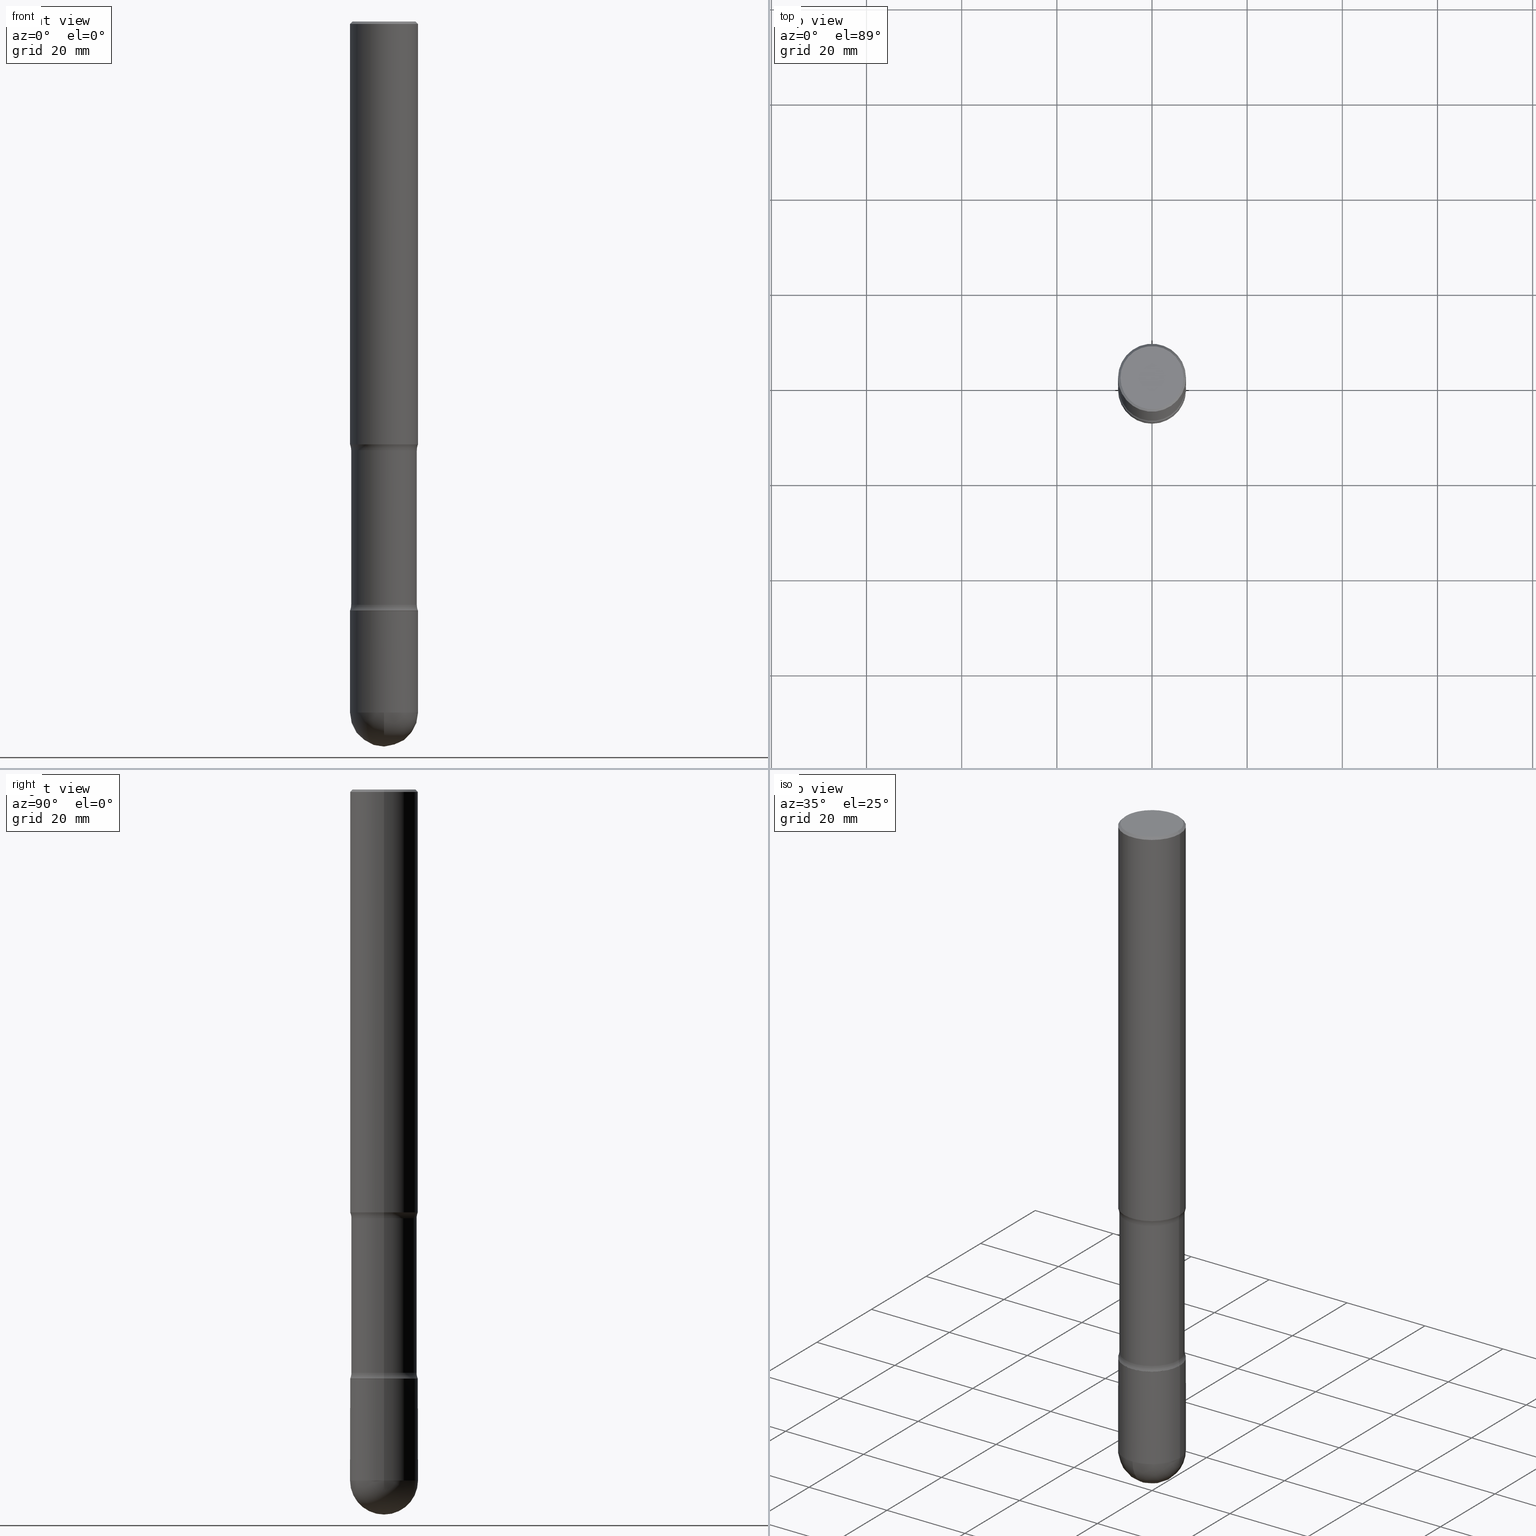
[diagram: canonical four-view strip — front | top / right | iso, engineering-drawing reading convention]
A machine part, canonical four-view strip (front | top / right | iso — engineering-drawing reading convention). The complete STEP part file that produces these views, byte-faithful:
ISO-10303-21;
HEADER;
FILE_DESCRIPTION (( 'STEP AP203' ),
    '1' );
FILE_NAME ('38496.STEP',
    '2024-02-29T19:25:12',
    ( '' ),
    ( '' ),
    'SwSTEP 2.0',
    'SolidWorks 2023',
    '' );
FILE_SCHEMA (( 'CONFIG_CONTROL_DESIGN' ));
ENDSEC;

DATA;
#1 = VERTEX_POINT ( 'NONE', #242 ) ;
#2 = CIRCLE ( 'NONE', #212, 0.2812500000000000555 ) ;
#3 = DIRECTION ( 'NONE',  ( 0.7071067811873008591, -2.468850131090147642E-15, 0.7071067811857941754 ) ) ;
#4 = AXIS2_PLACEMENT_3D ( 'NONE', #535, #7, #485 ) ;
#5 = EDGE_CURVE ( 'NONE', #310, #346, #274, .T. ) ;
#6 = EDGE_CURVE ( 'NONE', #467, #320, #553, .T. ) ;
#7 = DIRECTION ( 'NONE',  ( -2.438088387897960049E-29, 3.491481338843145188E-15, 1.000000000000000000 ) ) ;
#8 = ORIENTED_EDGE ( 'NONE', *, *, #363, .F. ) ;
#9 = PLANE ( 'NONE',  #4 ) ;
#10 = CIRCLE ( 'NONE', #470, 0.2811025723634238416 ) ;
#11 = SECURITY_CLASSIFICATION ( '', '', #315 ) ;
#12 = EDGE_LOOP ( 'NONE', ( #419, #264, #414, #437 ) ) ;
#13 = DIRECTION ( 'NONE',  ( -2.445468806185136597E-29, 3.491481338843145583E-15, 1.000000000000000000 ) ) ;
#14 = ADVANCED_FACE ( 'NONE', ( #508 ), #115, .T. ) ;
#15 = ORIENTED_EDGE ( 'NONE', *, *, #356, .T. ) ;
#16 = APPROVAL_ROLE ( '' ) ;
#17 = DIRECTION ( 'NONE',  ( 2.445468806185136597E-29, -3.491481338843145583E-15, -1.000000000000000000 ) ) ;
#18 = VERTEX_POINT ( 'NONE', #245 ) ;
#19 = APPROVAL_STATUS ( 'not_yet_approved' ) ;
#20 = CIRCLE ( 'NONE', #469, 0.1250000000000071332 ) ;
#21 = AXIS2_PLACEMENT_3D ( 'NONE', #215, #528, #93 ) ;
#22 = ORIENTED_EDGE ( 'NONE', *, *, #404, .F. ) ;
#23 = ADVANCED_BREP_SHAPE_REPRESENTATION ( '38496', ( #278, #473, #161 ), #89 ) ;
#24 = FACE_OUTER_BOUND ( 'NONE', #380, .T. ) ;
#25 = ORIENTED_EDGE ( 'NONE', *, *, #235, .T. ) ;
#26 = EDGE_CURVE ( 'NONE', #133, #18, #2, .T. ) ;
#27 = ORIENTED_EDGE ( 'NONE', *, *, #325, .F. ) ;
#28 = APPROVAL_DATE_TIME ( #367, #170 ) ;
#29 = CARTESIAN_POINT ( 'NONE',  ( 1.960466771760531918E-15, 0.2807499999999821250, -4.875000000000001776 ) ) ;
#30 = AXIS2_PLACEMENT_3D ( 'NONE', #44, #471, #81 ) ;
#31 = CIRCLE ( 'NONE', #483, 0.2812499999999996114 ) ;
#32 = CARTESIAN_POINT ( 'NONE',  ( 1.396097318348808052E-28, -2.000135209773525874E-14, -5.718750000000000000 ) ) ;
#33 = CC_DESIGN_DATE_AND_TIME_ASSIGNMENT ( #100, #68, ( #11 ) ) ;
#34 = CARTESIAN_POINT ( 'NONE',  ( 1.192166043015254315E-28, -1.702097152686033664E-14, -4.875000000000000888 ) ) ;
#35 = EDGE_LOOP ( 'NONE', ( #262, #314, #180, #361 ) ) ;
#36 = DIRECTION ( 'NONE',  ( 2.445468806185136597E-29, -3.491481338843145583E-15, -1.000000000000000000 ) ) ;
#37 = DIRECTION ( 'NONE',  ( 2.445468806185136597E-29, -3.491481338843145583E-15, -1.000000000000000000 ) ) ;
#38 = LINE ( 'NONE', #168, #40 ) ;
#39 = AXIS2_PLACEMENT_3D ( 'NONE', #326, #339, #519 ) ;
#40 = VECTOR ( 'NONE', #3, 39.37007874015748143 ) ;
#41 = LOCAL_TIME ( 14, 25, 12.00000000000000000, #554 ) ;
#42 = EDGE_CURVE ( 'NONE', #99, #533, #119, .T. ) ;
#43 = CARTESIAN_POINT ( 'NONE',  ( 0.2807499999999991114, -1.898205379853449620E-14, -4.875000000000000888 ) ) ;
#44 = CARTESIAN_POINT ( 'NONE',  ( -0.3964999999999875846, -9.620423262535530340E-15, -3.548398734487588246 ) ) ;
#45 = CARTESIAN_POINT ( 'NONE',  ( 0.2812499999999991118, -1.898492977995959205E-14, -4.875000000000000888 ) ) ;
#46 = ORIENTED_EDGE ( 'NONE', *, *, #325, .T. ) ;
#47 = CARTESIAN_POINT ( 'NONE',  ( 1.192166043015254315E-28, -1.702097152686033664E-14, -4.875000000000000888 ) ) ;
#48 = ORIENTED_EDGE ( 'NONE', *, *, #507, .T. ) ;
#49 = DIRECTION ( 'NONE',  ( 2.445468806185136597E-29, -3.491481338843145583E-15, -1.000000000000000000 ) ) ;
#50 = TOROIDAL_SURFACE ( 'NONE', #517, 0.3965000000000065694, 0.1250000000000071332 ) ;
#51 = DIRECTION ( 'NONE',  ( 1.000000000000000000, -6.982962677686261977E-15, 0.000000000000000000 ) ) ;
#52 = ORIENTED_EDGE ( 'NONE', *, *, #126, .F. ) ;
#53 = DIRECTION ( 'NONE',  ( -1.000000000000000000, 6.982962677686265922E-15, -4.883557194083112340E-29 ) ) ;
#54 = ADVANCED_FACE ( 'NONE', ( #64 ), #176, .F. ) ;
#55 = CIRCLE ( 'NONE', #136, 0.2714999999999994640 ) ;
#56 = CARTESIAN_POINT ( 'NONE',  ( 1.963958253099395041E-15, 0.2812499999999790168, -5.718750000000001776 ) ) ;
#57 = ORIENTED_EDGE ( 'NONE', *, *, #6, .T. ) ;
#58 = ORIENTED_EDGE ( 'NONE', *, *, #280, .T. ) ;
#59 = DATE_AND_TIME ( #540, #390 ) ;
#60 = CARTESIAN_POINT ( 'NONE',  ( 4.890937612370354609E-31, -6.982962677686407473E-17, -0.02000000000000033348 ) ) ;
#61 = DIRECTION ( 'NONE',  ( -1.000000000000000000, 6.982962677686265133E-15, 0.000000000000000000 ) ) ;
#62 = CIRCLE ( 'NONE', #248, 0.2812499999999990008 ) ;
#63 = APPROVAL_PERSON_ORGANIZATION ( #187, #354, #229 ) ;
#64 = FACE_OUTER_BOUND ( 'NONE', #139, .T. ) ;
#65 = CALENDAR_DATE ( 2024, 29, 2 ) ;
#66 = PLANE ( 'NONE',  #304 ) ;
#67 = DIRECTION ( 'NONE',  ( 2.445468806185136877E-29, -3.491481338843145188E-15, -1.000000000000000000 ) ) ;
#68 = DATE_TIME_ROLE ( 'classification_date' ) ;
#69 = ADVANCED_FACE ( 'NONE', ( #379 ), #237, .T. ) ;
#70 = DIRECTION ( 'NONE',  ( -1.000000000000000000, 6.982962677686268288E-15, 0.000000000000000000 ) ) ;
#71 = CARTESIAN_POINT ( 'NONE',  ( 1.192166043015254315E-28, -1.702097152686033664E-14, -4.875000000000000888 ) ) ;
#72 = DIRECTION ( 'NONE',  ( 0.7071067811865426878, -7.319954787623238690E-15, -0.7071067811865523467 ) ) ;
#73 = CIRCLE ( 'NONE', #335, 0.2812499999999991118 ) ;
#74 = FACE_OUTER_BOUND ( 'NONE', #166, .T. ) ;
#75 = DIRECTION ( 'NONE',  ( 1.000000000000000000, -6.982962677686267499E-15, 4.876176775795935232E-29 ) ) ;
#76 = ORIENTED_EDGE ( 'NONE', *, *, #111, .F. ) ;
#77 = CARTESIAN_POINT ( 'NONE',  ( -0.2812499999999991673, -1.649553877235951378E-14, -4.875000000000000888 ) ) ;
#78 = CIRCLE ( 'NONE', #502, 0.2612499999999995937 ) ;
#79 = VECTOR ( 'NONE', #131, 39.37007874015748143 ) ;
#80 = CARTESIAN_POINT ( 'NONE',  ( 1.180330283470431069E-28, -1.685198824857329994E-14, -4.826601265512413086 ) ) ;
#81 = DIRECTION ( 'NONE',  ( 1.000000000000000000, -6.982962677686264344E-15, 0.000000000000000000 ) ) ;
#82 = CARTESIAN_POINT ( 'NONE',  ( 0.2812499999999989453, -2.045789846978405097E-14, -5.718750000000000000 ) ) ;
#83 = DIRECTION ( 'NONE',  ( 2.445468806185136597E-29, -3.491481338843145583E-15, -1.000000000000000000 ) ) ;
#84 = CARTESIAN_POINT ( 'NONE',  ( 1.192079822543586772E-28, -1.701974052703285180E-14, -4.874647427636577213 ) ) ;
#85 = DIRECTION ( 'NONE',  ( 6.860497997771531562E-15, 1.000000000000000000, -3.491481338843145583E-15 ) ) ;
#86 = ORIENTED_EDGE ( 'NONE', *, *, #330, .T. ) ;
#87 = AXIS2_PLACEMENT_3D ( 'NONE', #47, #211, #174 ) ;
#88 = DIRECTION ( 'NONE',  ( -1.000000000000000000, 6.982962677686266711E-15, -4.883557194083112901E-29 ) ) ;
#89 =( GEOMETRIC_REPRESENTATION_CONTEXT ( 3 ) GLOBAL_UNCERTAINTY_ASSIGNED_CONTEXT ( ( #393 ) ) GLOBAL_UNIT_ASSIGNED_CONTEXT ( ( #227, #254, #220 ) ) REPRESENTATION_CONTEXT ( 'NONE', 'WORKASPACE' ) );
#90 = LOCAL_TIME ( 14, 25, 12.00000000000000000, #183 ) ;
#91 = FACE_OUTER_BOUND ( 'NONE', #35, .T. ) ;
#92 = ORIENTED_EDGE ( 'NONE', *, *, #530, .F. ) ;
#93 = DIRECTION ( 'NONE',  ( -1.000000000000000000, 6.982962677686265133E-15, 0.000000000000000000 ) ) ;
#94 = ORIENTED_EDGE ( 'NONE', *, *, #137, .T. ) ;
#95 = CARTESIAN_POINT ( 'NONE',  ( 1.192166043015254315E-28, -1.702097152686033664E-14, -4.875000000000000888 ) ) ;
#96 = AXIS2_PLACEMENT_3D ( 'NONE', #505, #112, #286 ) ;
#97 = ORIENTED_EDGE ( 'NONE', *, *, #128, .F. ) ;
#98 = APPLICATION_PROTOCOL_DEFINITION ( 'international standard', 'config_control_design', 1994, #209 ) ;
#99 = VERTEX_POINT ( 'NONE', #284 ) ;
#100 = DATE_AND_TIME ( #65, #144 ) ;
#101 = DIRECTION ( 'NONE',  ( -1.000000000000000000, 6.860497997771536296E-15, 0.000000000000000000 ) ) ;
#102 = ORIENTED_EDGE ( 'NONE', *, *, #559, .F. ) ;
#103 = COORDINATED_UNIVERSAL_TIME_OFFSET ( 5, 0, .BEHIND. ) ;
#104 = CARTESIAN_POINT ( 'NONE',  ( 1.192166043015254315E-28, -1.702097152686033664E-14, -4.875000000000000888 ) ) ;
#105 = VECTOR ( 'NONE', #163, 39.37007874015748143 ) ;
#106 = EDGE_LOOP ( 'NONE', ( #46, #489, #92, #252 ) ) ;
#107 = PERSON_AND_ORGANIZATION ( #344, #305 ) ;
#108 = DIRECTION ( 'NONE',  ( -1.000000000000000000, 6.982962677686265922E-15, 0.000000000000000000 ) ) ;
#109 = ORIENTED_EDGE ( 'NONE', *, *, #383, .T. ) ;
#110 = SHAPE_DEFINITION_REPRESENTATION ( #448, #23 ) ;
#111 = EDGE_CURVE ( 'NONE', #167, #18, #461, .T. ) ;
#112 = DIRECTION ( 'NONE',  ( 2.445468806185136597E-29, -3.491481338843145583E-15, -1.000000000000000000 ) ) ;
#113 = CARTESIAN_POINT ( 'NONE',  ( 1.192166043015254315E-28, -1.702097152686033664E-14, -4.875000000000000888 ) ) ;
#114 = DIRECTION ( 'NONE',  ( 1.000000000000000000, -6.982962677686268288E-15, 0.000000000000000000 ) ) ;
#115 = CYLINDRICAL_SURFACE ( 'NONE', #531, 0.2812499999999990008 ) ;
#116 = CARTESIAN_POINT ( 'NONE',  ( 1.398502473537124991E-28, -1.996690890650924185E-14, -5.718750000000000000 ) ) ;
#117 = VECTOR ( 'NONE', #468, 39.37007874015748143 ) ;
#118 = ORIENTED_EDGE ( 'NONE', *, *, #288, .F. ) ;
#119 = CIRCLE ( 'NONE', #431, 0.2714999999999994640 ) ;
#120 = CIRCLE ( 'NONE', #290, 0.2714999999999992975 ) ;
#121 = DIRECTION ( 'NONE',  ( -2.445468806185136597E-29, 3.491481338843145583E-15, 1.000000000000000000 ) ) ;
#122 = DIRECTION ( 'NONE',  ( -1.000000000000000000, 6.982962677686268288E-15, 0.000000000000000000 ) ) ;
#123 = CARTESIAN_POINT ( 'NONE',  ( 0.3965000000000065694, -1.957217570468975761E-14, -4.826601265512413086 ) ) ;
#124 = ORIENTED_EDGE ( 'NONE', *, *, #356, .F. ) ;
#125 = DIRECTION ( 'NONE',  ( 2.445468806185136597E-29, -3.491481338843145583E-15, -1.000000000000000000 ) ) ;
#126 = EDGE_CURVE ( 'NONE', #542, #167, #464, .T. ) ;
#127 = EDGE_LOOP ( 'NONE', ( #8, #441, #555, #348, #498 ) ) ;
#128 = EDGE_CURVE ( 'NONE', #18, #133, #541, .T. ) ;
#129 = EDGE_CURVE ( 'NONE', #542, #226, #78, .T. ) ;
#130 = CC_DESIGN_DATE_AND_TIME_ASSIGNMENT ( #59, #447, ( #457 ) ) ;
#131 = DIRECTION ( 'NONE',  ( 2.445468806185136877E-29, -3.491481338843145188E-15, -1.000000000000000000 ) ) ;
#132 = DIRECTION ( 'NONE',  ( -1.000000000000000000, 7.105427357601001070E-15, -4.926315508542082329E-29 ) ) ;
#133 = VERTEX_POINT ( 'NONE', #169 ) ;
#134 = ORIENTED_EDGE ( 'NONE', *, *, #330, .F. ) ;
#135 = DIRECTION ( 'NONE',  ( -1.000000000000000000, 6.982962677686268288E-15, 0.000000000000000000 ) ) ;
#136 = AXIS2_PLACEMENT_3D ( 'NONE', #343, #521, #336 ) ;
#137 = EDGE_CURVE ( 'NONE', #1, #133, #295, .T. ) ;
#138 = ORIENTED_EDGE ( 'NONE', *, *, #162, .F. ) ;
#139 = EDGE_LOOP ( 'NONE', ( #118, #308, #94, #480 ) ) ;
#140 = FACE_OUTER_BOUND ( 'NONE', #359, .T. ) ;
#141 = ORIENTED_EDGE ( 'NONE', *, *, #218, .F. ) ;
#142 = ORIENTED_EDGE ( 'NONE', *, *, #363, .T. ) ;
#143 = TOROIDAL_SURFACE ( 'NONE', #424, 0.3964999999999875846, 0.1249999999999883010 ) ;
#144 = LOCAL_TIME ( 14, 25, 12.00000000000000000, #456 ) ;
#145 = VERTEX_POINT ( 'NONE', #207 ) ;
#146 = CALENDAR_DATE ( 2024, 29, 2 ) ;
#147 = APPROVAL_ROLE ( '' ) ;
#148 = DIRECTION ( 'NONE',  ( 2.445468806185136597E-29, -3.491481338843145583E-15, -1.000000000000000000 ) ) ;
#149 = ORIENTED_EDGE ( 'NONE', *, *, #536, .F. ) ;
#150 = CARTESIAN_POINT ( 'NONE',  ( 0.000000000000000000, 0.000000000000000000, 0.000000000000000000 ) ) ;
#151 = CIRCLE ( 'NONE', #381, 0.1249999999999882871 ) ;
#152 = CONICAL_SURFACE ( 'NONE', #177, 0.2807499999999991114, 0.7853981633985136490 ) ;
#153 = DIRECTION ( 'NONE',  ( 2.445468806185136597E-29, -3.491481338843145583E-15, -1.000000000000000000 ) ) ;
#154 = CARTESIAN_POINT ( 'NONE',  ( 1.398502473537124991E-28, -1.996690890650924185E-14, -5.718750000000000000 ) ) ;
#155 = DIRECTION ( 'NONE',  ( -1.000000000000000000, 6.982962677686265133E-15, 0.000000000000000000 ) ) ;
#156 = APPLICATION_CONTEXT ( 'configuration controlled 3d designs of mechanical parts and assemblies' ) ;
#157 = DIRECTION ( 'NONE',  ( 2.438088387897960049E-29, -3.491481338843145188E-15, -1.000000000000000000 ) ) ;
#158 = VERTEX_POINT ( 'NONE', #45 ) ;
#159 = FACE_OUTER_BOUND ( 'NONE', #495, .T. ) ;
#160 = EDGE_LOOP ( 'NONE', ( #138, #124, #269, #272 ) ) ;
#161 = AXIS2_PLACEMENT_3D ( 'NONE', #285, #362, #409 ) ;
#162 = EDGE_CURVE ( 'NONE', #467, #99, #20, .T. ) ;
#163 = DIRECTION ( 'NONE',  ( -2.445468806185136877E-29, 3.491481338843145188E-15, 1.000000000000000000 ) ) ;
#164 = DIRECTION ( 'NONE',  ( -1.000000000000000000, 6.860497997771542606E-15, 0.000000000000000000 ) ) ;
#165 = CARTESIAN_POINT ( 'NONE',  ( 0.2714999999999993530, -1.888359673325530554E-14, -4.875000000000000888 ) ) ;
#166 = EDGE_LOOP ( 'NONE', ( #357, #403, #109, #268 ) ) ;
#167 = VERTEX_POINT ( 'NONE', #432 ) ;
#168 = CARTESIAN_POINT ( 'NONE',  ( 0.2807499999999991114, -1.898143829862075378E-14, -4.875000000000000888 ) ) ;
#169 = CARTESIAN_POINT ( 'NONE',  ( -0.2812500000000000555, -1.025622643285174920E-14, -3.500000000000000888 ) ) ;
#170 = APPROVAL ( #451, 'UNSPECIFIED' ) ;
#171 = AXIS2_PLACEMENT_3D ( 'NONE', #154, #514, #500 ) ;
#172 = LINE ( 'NONE', #165, #372 ) ;
#173 = LINE ( 'NONE', #292, #117 ) ;
#174 = DIRECTION ( 'NONE',  ( -1.000000000000000000, 6.982962677686265133E-15, 0.000000000000000000 ) ) ;
#175 = PLANE ( 'NONE',  #351 ) ;
#176 = TOROIDAL_SURFACE ( 'NONE', #39, 0.3964999999999875846, 0.1249999999999883010 ) ;
#177 = AXIS2_PLACEMENT_3D ( 'NONE', #557, #232, #497 ) ;
#178 = CC_DESIGN_APPROVAL ( #547, ( #11 ) ) ;
#179 = EDGE_LOOP ( 'NONE', ( #487, #58, #134, #270 ) ) ;
#180 = ORIENTED_EDGE ( 'NONE', *, *, #128, .T. ) ;
#181 = DIRECTION ( 'NONE',  ( 1.000000000000000000, -6.982962677686272233E-15, 0.000000000000000000 ) ) ;
#182 = ORIENTED_EDGE ( 'NONE', *, *, #523, .T. ) ;
#183 = COORDINATED_UNIVERSAL_TIME_OFFSET ( 5, 0, .BEHIND. ) ;
#184 = AXIS2_PLACEMENT_3D ( 'NONE', #443, #132, #224 ) ;
#185 = CONICAL_SURFACE ( 'NONE', #337, 0.2812499999999996114, 0.7853981633974415066 ) ;
#186 = EDGE_LOOP ( 'NONE', ( #76, #549, #255, #97 ) ) ;
#187 = PERSON_AND_ORGANIZATION ( #344, #305 ) ;
#188 = CARTESIAN_POINT ( 'NONE',  ( 0.3964999999999875846, -1.510935542035437277E-14, -3.548398734487588246 ) ) ;
#189 = DIRECTION ( 'NONE',  ( -1.000000000000000000, 6.982962677686269077E-15, 0.000000000000000000 ) ) ;
#190 = PERSON_AND_ORGANIZATION ( #344, #305 ) ;
#191 = DIRECTION ( 'NONE',  ( 2.445468806185136597E-29, -3.491481338843145583E-15, -1.000000000000000000 ) ) ;
#192 = PRODUCT ( '38496', '38496', '', ( #194 ) ) ;
#193 = DIRECTION ( 'NONE',  ( 2.445468806185136597E-29, -3.491481338843145583E-15, -1.000000000000000000 ) ) ;
#194 = MECHANICAL_CONTEXT ( 'NONE', #156, 'mechanical' ) ;
#195 = FACE_OUTER_BOUND ( 'NONE', #501, .T. ) ;
#196 = AXIS2_PLACEMENT_3D ( 'NONE', #34, #193, #155 ) ;
#197 = CONICAL_SURFACE ( 'NONE', #389, 0.2812499999999996114, 0.7853981633974415066 ) ;
#198 = CARTESIAN_POINT ( 'NONE',  ( 1.192079822543586772E-28, -1.701974052703285180E-14, -4.874647427636577213 ) ) ;
#199 = DIRECTION ( 'NONE',  ( 1.000000000000000000, -6.982962677686265922E-15, 4.883557194083112340E-29 ) ) ;
#200 = DIRECTION ( 'NONE',  ( -1.000000000000000000, 6.982962677686268288E-15, 0.000000000000000000 ) ) ;
#201 = EDGE_CURVE ( 'NONE', #158, #221, #73, .T. ) ;
#202 = DIRECTION ( 'NONE',  ( 2.445468806185136877E-29, -3.491481338843145188E-15, -1.000000000000000000 ) ) ;
#203 = DIRECTION ( 'NONE',  ( -1.000000000000000000, 6.982962677686265133E-15, -4.876176775795934672E-29 ) ) ;
#204 = AXIS2_PLACEMENT_3D ( 'NONE', #365, #148, #319 ) ;
#205 = DIRECTION ( 'NONE',  ( 2.445468806185136597E-29, -3.491481338843145583E-15, -1.000000000000000000 ) ) ;
#206 = CARTESIAN_POINT ( 'NONE',  ( -0.2812499999999990008, 1.998401444325274673E-15, -1.383450494134187504E-29 ) ) ;
#207 = CARTESIAN_POINT ( 'NONE',  ( -0.2812499999999989453, -1.649553877235951694E-14, -5.718750000000000000 ) ) ;
#208 = CARTESIAN_POINT ( 'NONE',  ( -0.2714999999999993530, -1.512509715986852223E-14, -4.875000000000000888 ) ) ;
#209 = APPLICATION_CONTEXT ( 'configuration controlled 3d designs of mechanical parts and assemblies' ) ;
#210 = ADVANCED_FACE ( 'NONE', ( #428 ), #341, .T. ) ;
#211 = DIRECTION ( 'NONE',  ( 2.445468806185136597E-29, -3.491481338843145583E-15, -1.000000000000000000 ) ) ;
#212 = AXIS2_PLACEMENT_3D ( 'NONE', #408, #552, #200 ) ;
#213 = CIRCLE ( 'NONE', #184, 0.2812499999999990008 ) ;
#214 = DIRECTION ( 'NONE',  ( -1.000000000000000000, 6.982962677686265922E-15, 0.000000000000000000 ) ) ;
#215 = CARTESIAN_POINT ( 'NONE',  ( 1.192166043015254315E-28, -1.702097152686033664E-14, -4.875000000000000888 ) ) ;
#216 = ORIENTED_EDGE ( 'NONE', *, *, #5, .F. ) ;
#217 = ORIENTED_EDGE ( 'NONE', *, *, #201, .F. ) ;
#218 = EDGE_CURVE ( 'NONE', #299, #133, #173, .T. ) ;
#219 = CARTESIAN_POINT ( 'NONE',  ( 8.677498417096211671E-29, -1.238916796423804762E-14, -3.548398734487588246 ) ) ;
#220 =( NAMED_UNIT ( * ) SI_UNIT ( $, .STERADIAN. ) SOLID_ANGLE_UNIT ( ) );
#221 = VERTEX_POINT ( 'NONE', #77 ) ;
#222 = CIRCLE ( 'NONE', #491, 0.2812499999999989453 ) ;
#223 = ORIENTED_EDGE ( 'NONE', *, *, #536, .T. ) ;
#224 = DIRECTION ( 'NONE',  ( -7.105427357601001859E-15, -1.000000000000000000, 0.000000000000000000 ) ) ;
#225 = ADVANCED_FACE ( 'NONE', ( #494 ), #175, .T. ) ;
#226 = VERTEX_POINT ( 'NONE', #277 ) ;
#227 =( CONVERSION_BASED_UNIT ( 'INCH', #332 ) LENGTH_UNIT ( ) NAMED_UNIT ( #324 ) );
#228 = ORIENTED_EDGE ( 'NONE', *, *, #303, .F. ) ;
#229 = APPROVAL_ROLE ( '' ) ;
#230 = CIRCLE ( 'NONE', #322, 0.1250000000000071332 ) ;
#231 = CC_DESIGN_APPROVAL ( #354, ( #457 ) ) ;
#232 = DIRECTION ( 'NONE',  ( -2.445468806185136597E-29, 3.491481338843145583E-15, 1.000000000000000000 ) ) ;
#233 = ORIENTED_EDGE ( 'NONE', *, *, #129, .F. ) ;
#234 = PERSON_AND_ORGANIZATION_ROLE ( 'creator' ) ;
#235 = EDGE_CURVE ( 'NONE', #1, #545, #430, .T. ) ;
#236 = DIRECTION ( 'NONE',  ( -1.000000000000000000, 6.982962677686266711E-15, 0.000000000000000000 ) ) ;
#237 = SPHERICAL_SURFACE ( 'NONE', #398, 0.2812499999999990008 ) ;
#238 = PERSON_AND_ORGANIZATION ( #344, #305 ) ;
#239 = ADVANCED_FACE ( 'NONE', ( #24 ), #506, .T. ) ;
#240 = CARTESIAN_POINT ( 'NONE',  ( 8.559140821647979210E-29, -1.222018468595101250E-14, -3.500000000000000888 ) ) ;
#241 = DIRECTION ( 'NONE',  ( 1.000000000000000000, -6.982962677686267499E-15, 4.876176775795935232E-29 ) ) ;
#242 = CARTESIAN_POINT ( 'NONE',  ( -0.2714999999999992975, -1.049329359724623164E-14, -3.548398734487588246 ) ) ;
#243 = CC_DESIGN_APPROVAL ( #170, ( #258 ) ) ;
#244 = CYLINDRICAL_SURFACE ( 'NONE', #532, 0.2714999999999993530 ) ;
#245 = CARTESIAN_POINT ( 'NONE',  ( 0.2812500000000000000, -8.074522218237177205E-15, -3.500000000000000888 ) ) ;
#246 = CARTESIAN_POINT ( 'NONE',  ( -1.998401444325134650E-15, -0.2812500000000189848, -5.718749999999999112 ) ) ;
#247 = DIRECTION ( 'NONE',  ( 1.000000000000000000, -6.982962677686261977E-15, 0.000000000000000000 ) ) ;
#248 = AXIS2_PLACEMENT_3D ( 'NONE', #32, #199, #374 ) ;
#249 = AXIS2_PLACEMENT_3D ( 'NONE', #340, #125, #520 ) ;
#250 = FACE_OUTER_BOUND ( 'NONE', #186, .T. ) ;
#251 = ADVANCED_FACE ( 'NONE', ( #368 ), #551, .T. ) ;
#252 = ORIENTED_EDGE ( 'NONE', *, *, #377, .F. ) ;
#253 = CARTESIAN_POINT ( 'NONE',  ( 0.2812499999999990008, -1.963958253099255807E-15, 1.371424718192601967E-29 ) ) ;
#254 =( NAMED_UNIT ( * ) PLANE_ANGLE_UNIT ( ) SI_UNIT ( $, .RADIAN. ) );
#255 = ORIENTED_EDGE ( 'NONE', *, *, #218, .T. ) ;
#256 = VECTOR ( 'NONE', #67, 39.37007874015748143 ) ;
#257 = CARTESIAN_POINT ( 'NONE',  ( 1.398502473537124991E-28, -1.996690890650924185E-14, -5.718750000000000000 ) ) ;
#258 = PRODUCT_DEFINITION_FORMATION_WITH_SPECIFIED_SOURCE ( 'ANY', '', #192, .NOT_KNOWN. ) ;
#259 = CARTESIAN_POINT ( 'NONE',  ( 0.2612499999999995937, -1.895824895283957203E-15, 1.300802449975685690E-29 ) ) ;
#260 = EDGE_CURVE ( 'NONE', #320, #533, #230, .T. ) ;
#261 = ADVANCED_FACE ( 'NONE', ( #195 ), #66, .F. ) ;
#262 = ORIENTED_EDGE ( 'NONE', *, *, #417, .F. ) ;
#263 = DIRECTION ( 'NONE',  ( -1.000000000000000000, 6.982962677686268288E-15, 0.000000000000000000 ) ) ;
#264 = ORIENTED_EDGE ( 'NONE', *, *, #162, .T. ) ;
#265 = ORIENTED_EDGE ( 'NONE', *, *, #386, .T. ) ;
#266 = DIRECTION ( 'NONE',  ( 2.445468806185136597E-29, -3.491481338843145583E-15, -1.000000000000000000 ) ) ;
#267 = AXIS2_PLACEMENT_3D ( 'NONE', #95, #481, #306 ) ;
#268 = ORIENTED_EDGE ( 'NONE', *, *, #42, .F. ) ;
#269 = ORIENTED_EDGE ( 'NONE', *, *, #260, .T. ) ;
#270 = ORIENTED_EDGE ( 'NONE', *, *, #300, .F. ) ;
#271 = CARTESIAN_POINT ( 'NONE',  ( -0.2807499999999991114, -1.502425470764181182E-14, -4.875000000000000888 ) ) ;
#272 = ORIENTED_EDGE ( 'NONE', *, *, #364, .T. ) ;
#273 = COORDINATED_UNIVERSAL_TIME_OFFSET ( 5, 0, .BEHIND. ) ;
#274 = CIRCLE ( 'NONE', #196, 0.2807499999999991114 ) ;
#275 = CARTESIAN_POINT ( 'NONE',  ( 0.2714999999999992975, -1.420074645922863614E-14, -3.548398734487588246 ) ) ;
#276 = CIRCLE ( 'NONE', #204, 0.2612499999999995937 ) ;
#277 = CARTESIAN_POINT ( 'NONE',  ( -0.2612499999999995937, 1.824298999545533944E-15, -1.273901182676685998E-29 ) ) ;
#278 = MANIFOLD_SOLID_BREP ( 'Body-Move/Copy2[1]', #371 ) ;
#279 = CARTESIAN_POINT ( 'NONE',  ( 0.000000000000000000, 0.000000000000000000, 0.000000000000000000 ) ) ;
#280 = EDGE_CURVE ( 'NONE', #282, #446, #62, .T. ) ;
#281 = PERSON_AND_ORGANIZATION_ROLE ( 'classification_officer' ) ;
#282 = VERTEX_POINT ( 'NONE', #548 ) ;
#283 = DIRECTION ( 'NONE',  ( 2.438088387897960049E-29, -3.491481338843145188E-15, -1.000000000000000000 ) ) ;
#284 = CARTESIAN_POINT ( 'NONE',  ( 0.2714999999999995195, -1.648320331280064110E-14, -4.826601265512413086 ) ) ;
#285 = CARTESIAN_POINT ( 'NONE',  ( 0.000000000000000000, 0.000000000000000000, 0.000000000000000000 ) ) ;
#286 = DIRECTION ( 'NONE',  ( -1.000000000000000000, 6.982962677686268288E-15, 0.000000000000000000 ) ) ;
#287 = ORIENTED_EDGE ( 'NONE', *, *, #387, .T. ) ;
#288 = EDGE_CURVE ( 'NONE', #545, #18, #151, .T. ) ;
#289 = DIRECTION ( 'NONE',  ( -2.445468806185136597E-29, 3.491481338843145583E-15, 1.000000000000000000 ) ) ;
#290 = AXIS2_PLACEMENT_3D ( 'NONE', #429, #49, #214 ) ;
#291 = ORIENTED_EDGE ( 'NONE', *, *, #201, .T. ) ;
#292 = CARTESIAN_POINT ( 'NONE',  ( -0.2812499999999998335, -1.505701327376107491E-14, -4.875000000000000888 ) ) ;
#293 = CC_DESIGN_PERSON_AND_ORGANIZATION_ASSIGNMENT ( #321, #492, ( #192 ) ) ;
#294 = LINE ( 'NONE', #466, #452 ) ;
#295 = CIRCLE ( 'NONE', #30, 0.1249999999999882871 ) ;
#296 = DIRECTION ( 'NONE',  ( 1.000000000000000000, -6.982962677686265133E-15, 0.000000000000000000 ) ) ;
#297 = ADVANCED_FACE ( 'NONE', ( #159 ), #152, .T. ) ;
#298 = CIRCLE ( 'NONE', #526, 0.2812499999999989453 ) ;
#299 = VERTEX_POINT ( 'NONE', #454 ) ;
#300 = EDGE_CURVE ( 'NONE', #366, #401, #450, .T. ) ;
#301 = ORIENTED_EDGE ( 'NONE', *, *, #426, .F. ) ;
#302 = DIRECTION ( 'NONE',  ( -1.000000000000000000, 6.982962677686269077E-15, 0.000000000000000000 ) ) ;
#303 = EDGE_CURVE ( 'NONE', #145, #366, #298, .T. ) ;
#304 = AXIS2_PLACEMENT_3D ( 'NONE', #71, #157, #413 ) ;
#305 = ORGANIZATION ( 'UNSPECIFIED', 'UNSPECIFIED', '' ) ;
#306 = DIRECTION ( 'NONE',  ( 1.000000000000000000, -6.982962677686265133E-15, 0.000000000000000000 ) ) ;
#307 = SPHERICAL_SURFACE ( 'NONE', #323, 0.2812499999999990008 ) ;
#308 = ORIENTED_EDGE ( 'NONE', *, *, #235, .F. ) ;
#309 = CARTESIAN_POINT ( 'NONE',  ( 4.890937612370354609E-31, -6.982962677686407473E-17, -0.02000000000000033348 ) ) ;
#310 = VERTEX_POINT ( 'NONE', #271 ) ;
#311 = AXIS2_PLACEMENT_3D ( 'NONE', #240, #37, #122 ) ;
#312 = VECTOR ( 'NONE', #518, 39.37007874015748143 ) ;
#313 = LOCAL_TIME ( 14, 25, 12.00000000000000000, #103 ) ;
#314 = ORIENTED_EDGE ( 'NONE', *, *, #288, .T. ) ;
#315 = SECURITY_CLASSIFICATION_LEVEL ( 'unclassified' ) ;
#316 = ORIENTED_EDGE ( 'NONE', *, *, #280, .F. ) ;
#317 = CALENDAR_DATE ( 2024, 29, 2 ) ;
#318 = ADVANCED_FACE ( 'NONE', ( #74 ), #244, .T. ) ;
#319 = DIRECTION ( 'NONE',  ( -1.000000000000000000, 6.982962677686265133E-15, -4.876176775795934672E-29 ) ) ;
#320 = VERTEX_POINT ( 'NONE', #407 ) ;
#321 = PERSON_AND_ORGANIZATION ( #344, #305 ) ;
#322 = AXIS2_PLACEMENT_3D ( 'NONE', #333, #560, #114 ) ;
#323 = AXIS2_PLACEMENT_3D ( 'NONE', #433, #460, #510 ) ;
#324 = DIMENSIONAL_EXPONENTS ( 1.000000000000000000, 0.000000000000000000, 0.000000000000000000, 0.000000000000000000, 0.000000000000000000, 0.000000000000000000, 0.000000000000000000 ) ;
#325 = EDGE_CURVE ( 'NONE', #226, #542, #276, .T. ) ;
#326 = CARTESIAN_POINT ( 'NONE',  ( 8.677498417096211671E-29, -1.238916796423804762E-14, -3.548398734487588246 ) ) ;
#327 = CALENDAR_DATE ( 2024, 29, 2 ) ;
#328 = DIRECTION ( 'NONE',  ( 2.445468806185136597E-29, -3.491481338843145583E-15, -1.000000000000000000 ) ) ;
#329 = CARTESIAN_POINT ( 'NONE',  ( 0.2812499999999996114, -1.999344688650104578E-15, -0.02000000000000033348 ) ) ;
#330 = EDGE_CURVE ( 'NONE', #401, #446, #222, .T. ) ;
#331 = CC_DESIGN_PERSON_AND_ORGANIZATION_ASSIGNMENT ( #445, #281, ( #11 ) ) ;
#332 = LENGTH_MEASURE_WITH_UNIT ( LENGTH_MEASURE( 0.02539999999999999897 ), #556 );
#333 = CARTESIAN_POINT ( 'NONE',  ( -0.3965000000000065694, -1.408324354687065013E-14, -4.826601265512413086 ) ) ;
#334 = DIRECTION ( 'NONE',  ( 6.982962677686265922E-15, 1.000000000000000000, -3.885294924322521099E-15 ) ) ;
#335 = AXIS2_PLACEMENT_3D ( 'NONE', #566, #474, #296 ) ;
#336 = DIRECTION ( 'NONE',  ( -1.000000000000000000, 6.982962677686269077E-15, 0.000000000000000000 ) ) ;
#337 = AXIS2_PLACEMENT_3D ( 'NONE', #60, #513, #70 ) ;
#338 = APPROVAL_PERSON_ORGANIZATION ( #238, #547, #16 ) ;
#339 = DIRECTION ( 'NONE',  ( 2.445468806185136597E-29, -3.491481338843145583E-15, -1.000000000000000000 ) ) ;
#340 = CARTESIAN_POINT ( 'NONE',  ( 1.192166043015254315E-28, -1.702097152686033664E-14, -4.875000000000000888 ) ) ;
#341 = CYLINDRICAL_SURFACE ( 'NONE', #87, 0.2714999999999993530 ) ;
#342 = EDGE_CURVE ( 'NONE', #310, #320, #564, .T. ) ;
#343 = CARTESIAN_POINT ( 'NONE',  ( 1.180330283470431069E-28, -1.685198824857329994E-14, -4.826601265512413086 ) ) ;
#344 = PERSON ( 'UNSPECIFIED', 'UNSPECIFIED', 'UNSPECIFIED', ('UNSPECIFIED'), ('UNSPECIFIED'), ('UNSPECIFIED') ) ;
#345 = CIRCLE ( 'NONE', #96, 0.2812499999999996114 ) ;
#346 = VERTEX_POINT ( 'NONE', #43 ) ;
#347 = LINE ( 'NONE', #208, #79 ) ;
#348 = ORIENTED_EDGE ( 'NONE', *, *, #404, .T. ) ;
#349 = FACE_OUTER_BOUND ( 'NONE', #522, .T. ) ;
#350 = CARTESIAN_POINT ( 'NONE',  ( 0.2811025723634238416, -1.894824416190054702E-14, -4.874647427636577213 ) ) ;
#351 = AXIS2_PLACEMENT_3D ( 'NONE', #29, #283, #410 ) ;
#352 = ORIENTED_EDGE ( 'NONE', *, *, #387, .F. ) ;
#353 = TOROIDAL_SURFACE ( 'NONE', #442, 0.3965000000000065694, 0.1250000000000071332 ) ;
#354 = APPROVAL ( #19, 'UNSPECIFIED' ) ;
#355 = ORIENTED_EDGE ( 'NONE', *, *, #342, .F. ) ;
#356 = EDGE_CURVE ( 'NONE', #320, #467, #10, .T. ) ;
#357 = ORIENTED_EDGE ( 'NONE', *, *, #386, .F. ) ;
#358 = DIRECTION ( 'NONE',  ( 2.445468806185136597E-29, -3.491481338843145583E-15, -1.000000000000000000 ) ) ;
#359 = EDGE_LOOP ( 'NONE', ( #52, #475, #476, #102 ) ) ;
#360 = FACE_OUTER_BOUND ( 'NONE', #106, .T. ) ;
#361 = ORIENTED_EDGE ( 'NONE', *, *, #137, .F. ) ;
#362 = DIRECTION ( 'NONE',  ( 0.000000000000000000, 0.000000000000000000, 1.000000000000000000 ) ) ;
#363 = EDGE_CURVE ( 'NONE', #145, #221, #384, .T. ) ;
#364 = EDGE_CURVE ( 'NONE', #533, #99, #55, .T. ) ;
#365 = CARTESIAN_POINT ( 'NONE',  ( 0.000000000000000000, 0.000000000000000000, 0.000000000000000000 ) ) ;
#366 = VERTEX_POINT ( 'NONE', #246 ) ;
#367 = DATE_AND_TIME ( #317, #313 ) ;
#368 = FACE_OUTER_BOUND ( 'NONE', #405, .T. ) ;
#369 = DIRECTION ( 'NONE',  ( 2.445468806185136597E-29, -3.491481338843145583E-15, -1.000000000000000000 ) ) ;
#370 = APPLICATION_PROTOCOL_DEFINITION ( 'international standard', 'config_control_design', 1994, #156 ) ;
#371 = CLOSED_SHELL ( 'NONE', ( #251, #538, #69, #14, #261 ) ) ;
#372 = VECTOR ( 'NONE', #202, 39.37007874015748143 ) ;
#373 = APPROVAL_PERSON_ORGANIZATION ( #107, #170, #147 ) ;
#374 = DIRECTION ( 'NONE',  ( 6.982962677686265922E-15, 1.000000000000000000, 0.000000000000000000 ) ) ;
#375 = CC_DESIGN_PERSON_AND_ORGANIZATION_ASSIGNMENT ( #546, #459, ( #457 ) ) ;
#376 = CARTESIAN_POINT ( 'NONE',  ( 1.180330283470431069E-28, -1.685198824857329994E-14, -4.826601265512413086 ) ) ;
#377 = EDGE_CURVE ( 'NONE', #226, #299, #294, .T. ) ;
#378 = CARTESIAN_POINT ( 'NONE',  ( 8.677498417096211671E-29, -1.238916796423804762E-14, -3.548398734487588246 ) ) ;
#379 = FACE_OUTER_BOUND ( 'NONE', #179, .T. ) ;
#380 = EDGE_LOOP ( 'NONE', ( #394, #515, #558, #141 ) ) ;
#381 = AXIS2_PLACEMENT_3D ( 'NONE', #188, #449, #101 ) ;
#382 = FACE_OUTER_BOUND ( 'NONE', #160, .T. ) ;
#383 = EDGE_CURVE ( 'NONE', #1, #533, #347, .T. ) ;
#384 = LINE ( 'NONE', #206, #416 ) ;
#385 = DIRECTION ( 'NONE',  ( -2.445468806185136877E-29, 3.491481338843145188E-15, 1.000000000000000000 ) ) ;
#386 = EDGE_CURVE ( 'NONE', #545, #99, #172, .T. ) ;
#387 = EDGE_CURVE ( 'NONE', #346, #467, #38, .T. ) ;
#388 = CC_DESIGN_PERSON_AND_ORGANIZATION_ASSIGNMENT ( #190, #550, ( #258 ) ) ;
#389 = AXIS2_PLACEMENT_3D ( 'NONE', #309, #83, #135 ) ;
#390 = LOCAL_TIME ( 14, 25, 12.00000000000000000, #273 ) ;
#391 = DIRECTION ( 'NONE',  ( -0.7071067811865426878, 2.468850131082206573E-15, -0.7071067811865523467 ) ) ;
#392 = CARTESIAN_POINT ( 'NONE',  ( 1.180330283470431069E-28, -1.685198824857329994E-14, -4.826601265512413086 ) ) ;
#393 = UNCERTAINTY_MEASURE_WITH_UNIT (LENGTH_MEASURE( 1.000000000000000082E-05 ), #227, 'distance_accuracy_value', 'NONE');
#394 = ORIENTED_EDGE ( 'NONE', *, *, #530, .T. ) ;
#395 = FACE_OUTER_BOUND ( 'NONE', #434, .T. ) ;
#396 = ADVANCED_FACE ( 'NONE', ( #250 ), #527, .T. ) ;
#397 = ADVANCED_FACE ( 'NONE', ( #382 ), #353, .F. ) ;
#398 = AXIS2_PLACEMENT_3D ( 'NONE', #411, #512, #334 ) ;
#399 = ORIENTED_EDGE ( 'NONE', *, *, #342, .T. ) ;
#400 = CIRCLE ( 'NONE', #21, 0.2807499999999991114 ) ;
#401 = VERTEX_POINT ( 'NONE', #82 ) ;
#402 = CARTESIAN_POINT ( 'NONE',  ( 4.890937612370354609E-31, -6.982962677686407473E-17, -0.02000000000000033348 ) ) ;
#403 = ORIENTED_EDGE ( 'NONE', *, *, #417, .T. ) ;
#404 = EDGE_CURVE ( 'NONE', #401, #158, #478, .T. ) ;
#405 = EDGE_LOOP ( 'NONE', ( #223, #142, #217, #22, #86 ) ) ;
#406 = AXIS2_PLACEMENT_3D ( 'NONE', #378, #191, #108 ) ;
#407 = CARTESIAN_POINT ( 'NONE',  ( -0.2811025723634238416, -1.505681175561746183E-14, -4.874647427636577213 ) ) ;
#408 = CARTESIAN_POINT ( 'NONE',  ( 8.559140821647979210E-29, -1.222018468595101250E-14, -3.500000000000000888 ) ) ;
#409 = DIRECTION ( 'NONE',  ( 1.000000000000000000, 0.000000000000000000, 0.000000000000000000 ) ) ;
#410 = DIRECTION ( 'NONE',  ( -1.000000000000000000, 6.982962677686265922E-15, -4.876176775795935793E-29 ) ) ;
#411 = CARTESIAN_POINT ( 'NONE',  ( 1.396097318348808052E-28, -2.000135209773525874E-14, -5.718750000000000000 ) ) ;
#412 = APPROVAL_STATUS ( 'not_yet_approved' ) ;
#413 = DIRECTION ( 'NONE',  ( -1.000000000000000000, 6.982962677686265922E-15, -4.876176775795935793E-29 ) ) ;
#414 = ORIENTED_EDGE ( 'NONE', *, *, #42, .T. ) ;
#415 = VECTOR ( 'NONE', #72, 39.37007874015748143 ) ;
#416 = VECTOR ( 'NONE', #385, 39.37007874015748143 ) ;
#417 = EDGE_CURVE ( 'NONE', #545, #1, #120, .T. ) ;
#418 = DIRECTION ( 'NONE',  ( -1.000000000000000000, 6.982962677686269077E-15, 0.000000000000000000 ) ) ;
#419 = ORIENTED_EDGE ( 'NONE', *, *, #6, .F. ) ;
#420 = CARTESIAN_POINT ( 'NONE',  ( 1.192166043015254315E-28, -1.702097152686033664E-14, -4.875000000000000888 ) ) ;
#421 = EDGE_LOOP ( 'NONE', ( #355, #301, #287, #57 ) ) ;
#422 = ADVANCED_FACE ( 'NONE', ( #453 ), #504, .T. ) ;
#423 = CARTESIAN_POINT ( 'NONE',  ( -0.2807499999999991114, -1.502612279621386286E-14, -4.875000000000000888 ) ) ;
#424 = AXIS2_PLACEMENT_3D ( 'NONE', #219, #17, #88 ) ;
#425 = EDGE_LOOP ( 'NONE', ( #444, #537 ) ) ;
#426 = EDGE_CURVE ( 'NONE', #346, #310, #400, .T. ) ;
#427 = CARTESIAN_POINT ( 'NONE',  ( 1.398502473537124991E-28, -1.996690890650924185E-14, -5.718750000000000000 ) ) ;
#428 = FACE_OUTER_BOUND ( 'NONE', #490, .T. ) ;
#429 = CARTESIAN_POINT ( 'NONE',  ( 8.677498417096211671E-29, -1.238916796423804762E-14, -3.548398734487588246 ) ) ;
#430 = CIRCLE ( 'NONE', #406, 0.2714999999999992975 ) ;
#431 = AXIS2_PLACEMENT_3D ( 'NONE', #376, #153, #189 ) ;
#432 = CARTESIAN_POINT ( 'NONE',  ( 0.2812499999999996114, -1.999344688650104578E-15, -0.02000000000000033348 ) ) ;
#433 = CARTESIAN_POINT ( 'NONE',  ( 1.396097318348808052E-28, -2.000135209773525874E-14, -5.718750000000000000 ) ) ;
#434 = EDGE_LOOP ( 'NONE', ( #316, #182, #228, #149 ) ) ;
#435 = PRODUCT_RELATED_PRODUCT_CATEGORY ( 'detail', '', ( #192 ) ) ;
#436 = DIRECTION ( 'NONE',  ( -2.445468806185136597E-29, 3.491481338843145583E-15, 1.000000000000000000 ) ) ;
#437 = ORIENTED_EDGE ( 'NONE', *, *, #260, .F. ) ;
#438 = ADVANCED_FACE ( 'NONE', ( #439 ), #50, .F. ) ;
#439 = FACE_OUTER_BOUND ( 'NONE', #12, .T. ) ;
#440 = CLOSED_SHELL ( 'NONE', ( #297, #438, #210, #529, #239, #565, #486, #396, #54, #318, #397, #422, #225, #465 ) ) ;
#441 = ORIENTED_EDGE ( 'NONE', *, *, #303, .T. ) ;
#442 = AXIS2_PLACEMENT_3D ( 'NONE', #80, #525, #472 ) ;
#443 = CARTESIAN_POINT ( 'NONE',  ( 1.396097318348808052E-28, -2.000135209773525874E-14, -5.718750000000000000 ) ) ;
#444 = ORIENTED_EDGE ( 'NONE', *, *, #426, .T. ) ;
#445 = PERSON_AND_ORGANIZATION ( #344, #305 ) ;
#446 = VERTEX_POINT ( 'NONE', #56 ) ;
#447 = DATE_TIME_ROLE ( 'creation_date' ) ;
#448 = PRODUCT_DEFINITION_SHAPE ( 'NONE', 'NONE',  #457 ) ;
#449 = DIRECTION ( 'NONE',  ( 6.860497997771531562E-15, 1.000000000000000000, -3.491481338843145583E-15 ) ) ;
#450 = CIRCLE ( 'NONE', #171, 0.2812499999999989453 ) ;
#451 = APPROVAL_STATUS ( 'not_yet_approved' ) ;
#452 = VECTOR ( 'NONE', #391, 39.37007874015748143 ) ;
#453 = FACE_OUTER_BOUND ( 'NONE', #421, .T. ) ;
#454 = CARTESIAN_POINT ( 'NONE',  ( -0.2812499999999996114, 1.894128626322396059E-15, -0.02000000000000033348 ) ) ;
#455 = DIRECTION ( 'NONE',  ( -2.445468806185136597E-29, 3.491481338843145583E-15, 1.000000000000000000 ) ) ;
#456 = COORDINATED_UNIVERSAL_TIME_OFFSET ( 5, 0, .BEHIND. ) ;
#457 = PRODUCT_DEFINITION ( 'UNKNOWN', '', #258, #488 ) ;
#458 = CARTESIAN_POINT ( 'NONE',  ( 0.2812499999999998335, -1.895048658873357831E-14, -4.875000000000000888 ) ) ;
#459 = PERSON_AND_ORGANIZATION_ROLE ( 'creator' ) ;
#460 = DIRECTION ( 'NONE',  ( -1.000000000000000000, 6.982962677686265922E-15, -4.883557194083112901E-29 ) ) ;
#461 = LINE ( 'NONE', #458, #256 ) ;
#462 = CIRCLE ( 'NONE', #543, 0.2812499999999989453 ) ;
#463 = DIRECTION ( 'NONE',  ( 1.000000000000000000, -6.982962677686261977E-15, 0.000000000000000000 ) ) ;
#464 = LINE ( 'NONE', #329, #415 ) ;
#465 = ADVANCED_FACE ( 'NONE', ( #349 ), #9, .T. ) ;
#466 = CARTESIAN_POINT ( 'NONE',  ( -0.2812499999999996114, 1.894128626322396059E-15, -0.02000000000000033348 ) ) ;
#467 = VERTEX_POINT ( 'NONE', #350 ) ;
#468 = DIRECTION ( 'NONE',  ( 2.445468806185136877E-29, -3.491481338843145188E-15, -1.000000000000000000 ) ) ;
#469 = AXIS2_PLACEMENT_3D ( 'NONE', #123, #85, #164 ) ;
#470 = AXIS2_PLACEMENT_3D ( 'NONE', #84, #205, #302 ) ;
#471 = DIRECTION ( 'NONE',  ( -6.982962677686266711E-15, -1.000000000000000000, 3.491481338843145583E-15 ) ) ;
#472 = DIRECTION ( 'NONE',  ( -1.000000000000000000, 6.982962677686265922E-15, -4.883557194083112340E-29 ) ) ;
#473 = MANIFOLD_SOLID_BREP ( 'Body-Move/Copy2[2]', #440 ) ;
#474 = DIRECTION ( 'NONE',  ( -2.445468806185136597E-29, 3.491481338843145583E-15, 1.000000000000000000 ) ) ;
#475 = ORIENTED_EDGE ( 'NONE', *, *, #129, .T. ) ;
#476 = ORIENTED_EDGE ( 'NONE', *, *, #377, .T. ) ;
#477 = CARTESIAN_POINT ( 'NONE',  ( -0.2714999999999994640, -1.495611388158148237E-14, -4.826601265512413086 ) ) ;
#478 = LINE ( 'NONE', #253, #105 ) ;
#479 = CARTESIAN_POINT ( 'NONE',  ( 0.000000000000000000, 0.000000000000000000, 0.000000000000000000 ) ) ;
#480 = ORIENTED_EDGE ( 'NONE', *, *, #26, .T. ) ;
#481 = DIRECTION ( 'NONE',  ( -2.445468806185136597E-29, 3.491481338843145583E-15, 1.000000000000000000 ) ) ;
#482 = AXIS2_PLACEMENT_3D ( 'NONE', #104, #328, #236 ) ;
#483 = AXIS2_PLACEMENT_3D ( 'NONE', #402, #358, #263 ) ;
#484 = ORIENTED_EDGE ( 'NONE', *, *, #383, .F. ) ;
#485 = DIRECTION ( 'NONE',  ( 1.000000000000000000, -6.982962677686265922E-15, 4.876176775795935793E-29 ) ) ;
#486 = ADVANCED_FACE ( 'NONE', ( #140 ), #197, .T. ) ;
#487 = ORIENTED_EDGE ( 'NONE', *, *, #523, .F. ) ;
#488 = DESIGN_CONTEXT ( 'detailed design', #209, 'design' ) ;
#489 = ORIENTED_EDGE ( 'NONE', *, *, #126, .T. ) ;
#490 = EDGE_LOOP ( 'NONE', ( #25, #265, #534, #484 ) ) ;
#491 = AXIS2_PLACEMENT_3D ( 'NONE', #427, #121, #247 ) ;
#492 = PERSON_AND_ORGANIZATION_ROLE ( 'design_owner' ) ;
#493 = CC_DESIGN_SECURITY_CLASSIFICATION ( #11, ( #258 ) ) ;
#494 = FACE_OUTER_BOUND ( 'NONE', #425, .T. ) ;
#495 = EDGE_LOOP ( 'NONE', ( #216, #399, #15, #352 ) ) ;
#496 = APPROVAL_DATE_TIME ( #509, #547 ) ;
#497 = DIRECTION ( 'NONE',  ( 1.000000000000000000, -6.982962677686272233E-15, 0.000000000000000000 ) ) ;
#498 = ORIENTED_EDGE ( 'NONE', *, *, #507, .F. ) ;
#499 = PERSON_AND_ORGANIZATION ( #344, #305 ) ;
#500 = DIRECTION ( 'NONE',  ( 1.000000000000000000, -6.982962677686261977E-15, 0.000000000000000000 ) ) ;
#501 = EDGE_LOOP ( 'NONE', ( #291, #48 ) ) ;
#502 = AXIS2_PLACEMENT_3D ( 'NONE', #479, #563, #203 ) ;
#503 = APPROVAL_DATE_TIME ( #544, #354 ) ;
#504 = CONICAL_SURFACE ( 'NONE', #562, 0.2807499999999991114, 0.7853981633985136490 ) ;
#505 = CARTESIAN_POINT ( 'NONE',  ( 4.890937612370354609E-31, -6.982962677686407473E-17, -0.02000000000000033348 ) ) ;
#506 = CYLINDRICAL_SURFACE ( 'NONE', #482, 0.2812499999999998335 ) ;
#507 = EDGE_CURVE ( 'NONE', #221, #158, #516, .T. ) ;
#508 = FACE_OUTER_BOUND ( 'NONE', #127, .T. ) ;
#509 = DATE_AND_TIME ( #327, #41 ) ;
#510 = DIRECTION ( 'NONE',  ( 6.982962677686265922E-15, 1.000000000000000000, -3.885294924322521099E-15 ) ) ;
#511 = DIRECTION ( 'NONE',  ( -2.445468806185136597E-29, 3.491481338843145583E-15, 1.000000000000000000 ) ) ;
#512 = DIRECTION ( 'NONE',  ( -1.000000000000000000, 6.982962677686265922E-15, -4.883557194083112901E-29 ) ) ;
#513 = DIRECTION ( 'NONE',  ( 2.445468806185136597E-29, -3.491481338843145583E-15, -1.000000000000000000 ) ) ;
#514 = DIRECTION ( 'NONE',  ( -2.445468806185136597E-29, 3.491481338843145583E-15, 1.000000000000000000 ) ) ;
#515 = ORIENTED_EDGE ( 'NONE', *, *, #111, .T. ) ;
#516 = CIRCLE ( 'NONE', #267, 0.2812499999999991118 ) ;
#517 = AXIS2_PLACEMENT_3D ( 'NONE', #392, #266, #53 ) ;
#518 = DIRECTION ( 'NONE',  ( -0.7071067811873008591, 7.493145998873077308E-15, 0.7071067811857941754 ) ) ;
#519 = DIRECTION ( 'NONE',  ( -1.000000000000000000, 6.982962677686266711E-15, -4.883557194083112901E-29 ) ) ;
#520 = DIRECTION ( 'NONE',  ( -1.000000000000000000, 6.982962677686266711E-15, 0.000000000000000000 ) ) ;
#521 = DIRECTION ( 'NONE',  ( 2.445468806185136597E-29, -3.491481338843145583E-15, -1.000000000000000000 ) ) ;
#522 = EDGE_LOOP ( 'NONE', ( #27, #233 ) ) ;
#523 = EDGE_CURVE ( 'NONE', #282, #366, #213, .T. ) ;
#524 = AXIS2_PLACEMENT_3D ( 'NONE', #198, #369, #418 ) ;
#525 = DIRECTION ( 'NONE',  ( 2.445468806185136597E-29, -3.491481338843145583E-15, -1.000000000000000000 ) ) ;
#526 = AXIS2_PLACEMENT_3D ( 'NONE', #116, #289, #463 ) ;
#527 = CYLINDRICAL_SURFACE ( 'NONE', #249, 0.2812499999999998335 ) ;
#528 = DIRECTION ( 'NONE',  ( 2.445468806185136597E-29, -3.491481338843145583E-15, -1.000000000000000000 ) ) ;
#529 = ADVANCED_FACE ( 'NONE', ( #91 ), #143, .F. ) ;
#530 = EDGE_CURVE ( 'NONE', #299, #167, #31, .T. ) ;
#531 = AXIS2_PLACEMENT_3D ( 'NONE', #279, #455, #75 ) ;
#532 = AXIS2_PLACEMENT_3D ( 'NONE', #420, #36, #61 ) ;
#533 = VERTEX_POINT ( 'NONE', #477 ) ;
#534 = ORIENTED_EDGE ( 'NONE', *, *, #364, .F. ) ;
#535 = CARTESIAN_POINT ( 'NONE',  ( 1.824298999545533944E-15, 0.2612499999999995937, -9.121494997727703246E-16 ) ) ;
#536 = EDGE_CURVE ( 'NONE', #446, #145, #462, .T. ) ;
#537 = ORIENTED_EDGE ( 'NONE', *, *, #5, .T. ) ;
#538 = ADVANCED_FACE ( 'NONE', ( #395 ), #307, .T. ) ;
#539 = CC_DESIGN_PERSON_AND_ORGANIZATION_ASSIGNMENT ( #499, #234, ( #258 ) ) ;
#540 = CALENDAR_DATE ( 2024, 29, 2 ) ;
#541 = CIRCLE ( 'NONE', #311, 0.2812500000000000555 ) ;
#542 = VERTEX_POINT ( 'NONE', #259 ) ;
#543 = AXIS2_PLACEMENT_3D ( 'NONE', #257, #436, #51 ) ;
#544 = DATE_AND_TIME ( #146, #90 ) ;
#545 = VERTEX_POINT ( 'NONE', #275 ) ;
#546 = PERSON_AND_ORGANIZATION ( #344, #305 ) ;
#547 = APPROVAL ( #412, 'UNSPECIFIED' ) ;
#548 = CARTESIAN_POINT ( 'NONE',  ( 1.466078706116923264E-28, -2.096610962867187958E-14, -5.999999999999999112 ) ) ;
#549 = ORIENTED_EDGE ( 'NONE', *, *, #559, .T. ) ;
#550 = PERSON_AND_ORGANIZATION_ROLE ( 'design_supplier' ) ;
#551 = CYLINDRICAL_SURFACE ( 'NONE', #561, 0.2812499999999990008 ) ;
#552 = DIRECTION ( 'NONE',  ( 2.445468806185136597E-29, -3.491481338843145583E-15, -1.000000000000000000 ) ) ;
#553 = CIRCLE ( 'NONE', #524, 0.2811025723634238416 ) ;
#554 = COORDINATED_UNIVERSAL_TIME_OFFSET ( 5, 0, .BEHIND. ) ;
#555 = ORIENTED_EDGE ( 'NONE', *, *, #300, .T. ) ;
#556 =( LENGTH_UNIT ( ) NAMED_UNIT ( * ) SI_UNIT ( $, .METRE. ) );
#557 = CARTESIAN_POINT ( 'NONE',  ( 1.192166043015254315E-28, -1.702097152686033664E-14, -4.875000000000000888 ) ) ;
#558 = ORIENTED_EDGE ( 'NONE', *, *, #26, .F. ) ;
#559 = EDGE_CURVE ( 'NONE', #167, #299, #345, .T. ) ;
#560 = DIRECTION ( 'NONE',  ( -6.982962677686266711E-15, -1.000000000000000000, 3.491481338843145583E-15 ) ) ;
#561 = AXIS2_PLACEMENT_3D ( 'NONE', #150, #511, #241 ) ;
#562 = AXIS2_PLACEMENT_3D ( 'NONE', #113, #13, #181 ) ;
#563 = DIRECTION ( 'NONE',  ( 2.445468806185136597E-29, -3.491481338843145583E-15, -1.000000000000000000 ) ) ;
#564 = LINE ( 'NONE', #423, #312 ) ;
#565 = ADVANCED_FACE ( 'NONE', ( #360 ), #185, .T. ) ;
#566 = CARTESIAN_POINT ( 'NONE',  ( 1.192166043015254315E-28, -1.702097152686033664E-14, -4.875000000000000888 ) ) ;
ENDSEC;
END-ISO-10303-21;
